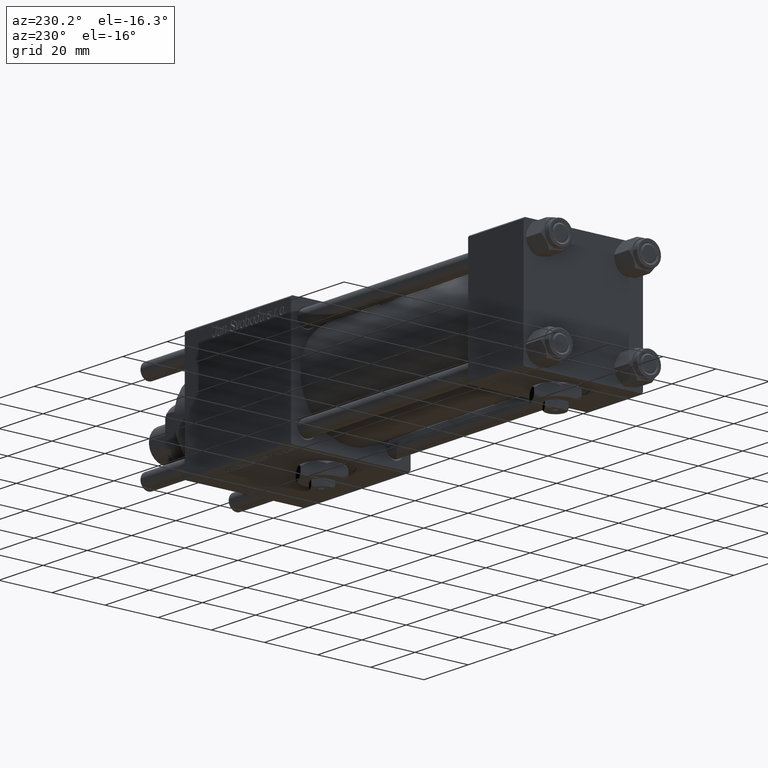
[diagram: clean part render]
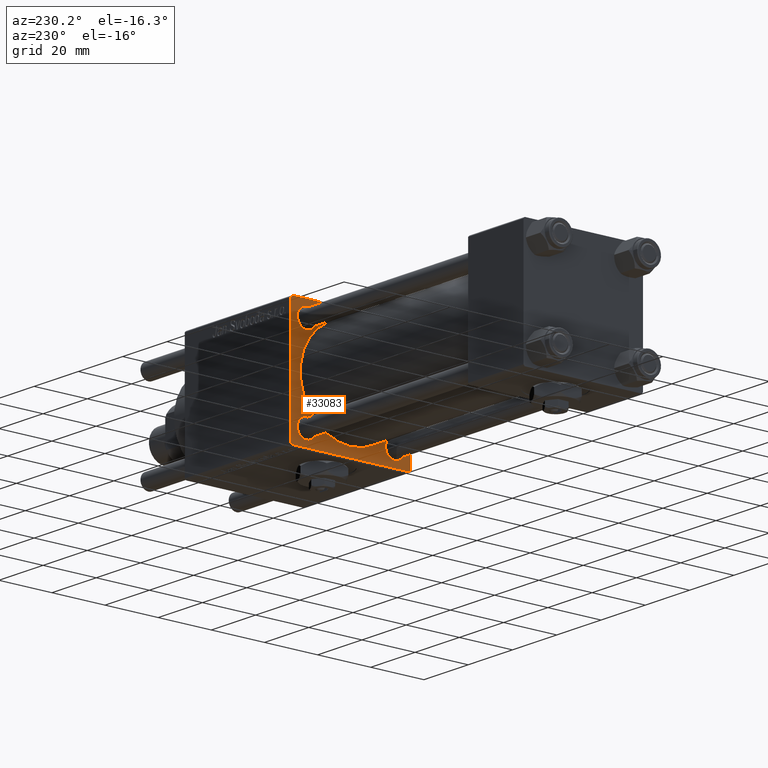
[diagram: same view with one face highlighted and labeled with its STEP entity id]
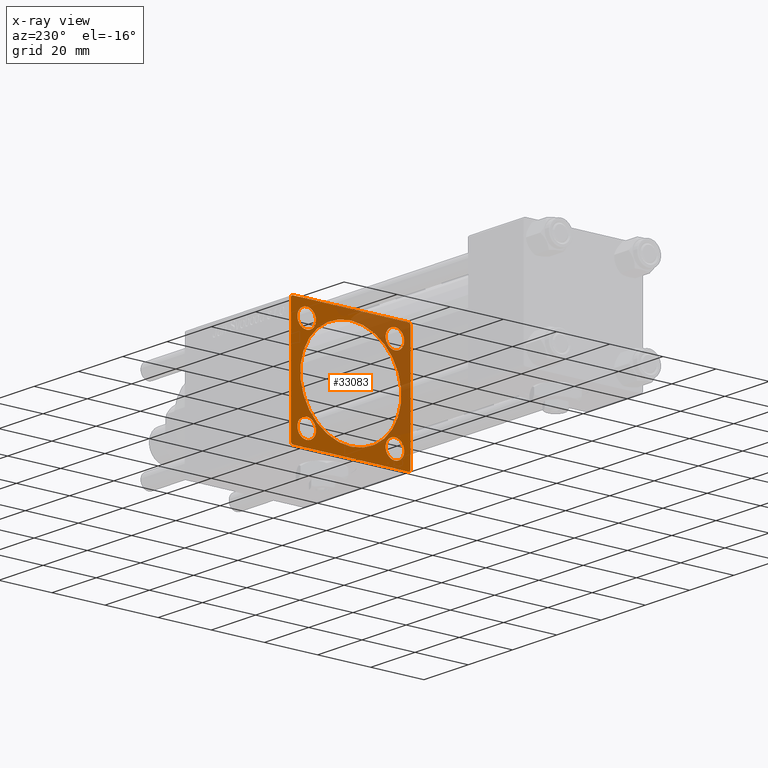
[diagram: x-ray of the same camera — body ghosted, the highlighted face saturated]
A machine part, auxiliary view. The second image highlights one B-rep face of the part: STEP entity #33083.
The next image is the same camera in x-ray: the body ghosted, the highlighted face saturated — about 34% of this face is hidden behind the body in this view.
In plain terms, the highlighted planar face has unit normal (-1, 0, 0).
Its self-contained STEP definition (entity closure, byte-faithful):
#736 = EDGE_CURVE ( 'NONE', #42206, #30085, #11154, .T. ) ;
#1822 = FACE_OUTER_BOUND ( 'NONE', #57294, .T. ) ;
#2079 = VERTEX_POINT ( 'NONE', #49309 ) ;
#2160 = EDGE_LOOP ( 'NONE', ( #48349, #51682 ) ) ;
#2229 = CARTESIAN_POINT ( 'NONE',  ( 105.0000000000000142, 16.59999999999999787, -16.60000000000000497 ) ) ;
#2240 = CARTESIAN_POINT ( 'NONE',  ( 105.0000000000000142, -2.602085213965210642E-15, 19.00000000000000000 ) ) ;
#2717 = CARTESIAN_POINT ( 'NONE',  ( 105.0000000000000142, 21.99999999999998934, -22.49999999999999645 ) ) ;
#3082 = DIRECTION ( 'NONE',  ( 0.000000000000000000, 0.000000000000000000, 1.000000000000000000 ) ) ;
#3524 = DIRECTION ( 'NONE',  ( 0.000000000000000000, -1.000000000000000000, -2.312964634635742957E-16 ) ) ;
#3587 = CARTESIAN_POINT ( 'NONE',  ( 105.0000000000000142, -22.49999999999999645, -21.99999999999997868 ) ) ;
#4515 = EDGE_CURVE ( 'NONE', #47605, #16704, #32586, .T. ) ;
#5038 = DIRECTION ( 'NONE',  ( 0.000000000000000000, 0.000000000000000000, 1.000000000000000000 ) ) ;
#5687 = LINE ( 'NONE', #56040, #31785 ) ;
#5832 = ORIENTED_EDGE ( 'NONE', *, *, #45251, .T. ) ;
#6378 = EDGE_CURVE ( 'NONE', #54887, #50156, #23923, .T. ) ;
#6623 = DIRECTION ( 'NONE',  ( 1.000000000000000000, 0.000000000000000000, 0.000000000000000000 ) ) ;
#6974 = FACE_BOUND ( 'NONE', #14320, .T. ) ;
#7241 = ORIENTED_EDGE ( 'NONE', *, *, #4515, .T. ) ;
#7329 = ORIENTED_EDGE ( 'NONE', *, *, #60033, .T. ) ;
#7377 = ORIENTED_EDGE ( 'NONE', *, *, #21058, .T. ) ;
#7544 = DIRECTION ( 'NONE',  ( 1.000000000000000000, -0.000000000000000000, 0.000000000000000000 ) ) ;
#9103 = EDGE_CURVE ( 'NONE', #2079, #21564, #10468, .T. ) ;
#9326 = ORIENTED_EDGE ( 'NONE', *, *, #9103, .T. ) ;
#9390 = CIRCLE ( 'NONE', #17146, 3.500000000000058620 ) ;
#9600 = DIRECTION ( 'NONE',  ( 1.000000000000000000, -0.000000000000000000, 0.000000000000000000 ) ) ;
#9624 = AXIS2_PLACEMENT_3D ( 'NONE', #2229, #13042, #29846 ) ;
#9709 = CIRCLE ( 'NONE', #33924, 3.500000000000058620 ) ;
#10468 = CIRCLE ( 'NONE', #14310, 3.500000000000058620 ) ;
#10715 = DIRECTION ( 'NONE',  ( 0.000000000000000000, 0.000000000000000000, 1.000000000000000000 ) ) ;
#10817 = CARTESIAN_POINT ( 'NONE',  ( 105.0000000000000142, 22.00000000000000355, 22.50000000000000355 ) ) ;
#11154 = LINE ( 'NONE', #43637, #14061 ) ;
#11560 = VERTEX_POINT ( 'NONE', #50959 ) ;
#11852 = EDGE_CURVE ( 'NONE', #30085, #45032, #40331, .T. ) ;
#11944 = VERTEX_POINT ( 'NONE', #32687 ) ;
#11969 = AXIS2_PLACEMENT_3D ( 'NONE', #38501, #6623, #29073 ) ;
#12044 = CIRCLE ( 'NONE', #45954, 3.499999999999989342 ) ;
#12534 = EDGE_LOOP ( 'NONE', ( #46786, #7241 ) ) ;
#13042 = DIRECTION ( 'NONE',  ( 1.000000000000000000, -0.000000000000000000, 0.000000000000000000 ) ) ;
#13900 = VERTEX_POINT ( 'NONE', #20386 ) ;
#14061 = VECTOR ( 'NONE', #47279, 999.9999999999998863 ) ;
#14075 = CARTESIAN_POINT ( 'NONE',  ( 105.0000000000000142, -22.49999999999999645, 22.49999999999999289 ) ) ;
#14148 = DIRECTION ( 'NONE',  ( 1.000000000000000000, 0.000000000000000000, 0.000000000000000000 ) ) ;
#14310 = AXIS2_PLACEMENT_3D ( 'NONE', #43562, #25030, #29580 ) ;
#14320 = EDGE_LOOP ( 'NONE', ( #7377, #9326 ) ) ;
#15254 = CARTESIAN_POINT ( 'NONE',  ( 105.0000000000000142, -16.59999999999999076, 16.60000000000000853 ) ) ;
#16146 = AXIS2_PLACEMENT_3D ( 'NONE', #55699, #9600, #5038 ) ;
#16704 = VERTEX_POINT ( 'NONE', #37456 ) ;
#17146 = AXIS2_PLACEMENT_3D ( 'NONE', #48809, #7544, #21796 ) ;
#17316 = ORIENTED_EDGE ( 'NONE', *, *, #48860, .F. ) ;
#17484 = LINE ( 'NONE', #53594, #28795 ) ;
#17716 = AXIS2_PLACEMENT_3D ( 'NONE', #26156, #53449, #3082 ) ;
#17758 = CIRCLE ( 'NONE', #11969, 19.00000000000000000 ) ;
#17850 = ORIENTED_EDGE ( 'NONE', *, *, #58696, .T. ) ;
#19035 = VECTOR ( 'NONE', #51082, 1000.000000000000000 ) ;
#19160 = EDGE_LOOP ( 'NONE', ( #5832, #38610 ) ) ;
#19272 = EDGE_CURVE ( 'NONE', #13900, #11944, #37746, .T. ) ;
#19498 = ORIENTED_EDGE ( 'NONE', *, *, #50569, .T. ) ;
#20157 = CARTESIAN_POINT ( 'NONE',  ( 105.0000000000000142, -16.59999999999999076, -16.60000000000000853 ) ) ;
#20227 = AXIS2_PLACEMENT_3D ( 'NONE', #15254, #33760, #10715 ) ;
#20386 = CARTESIAN_POINT ( 'NONE',  ( 105.0000000000000142, 16.59999999999999787, -20.10000000000006182 ) ) ;
#21058 = EDGE_CURVE ( 'NONE', #21564, #2079, #9709, .T. ) ;
#21221 = VERTEX_POINT ( 'NONE', #59826 ) ;
#21564 = VERTEX_POINT ( 'NONE', #33697 ) ;
#21796 = DIRECTION ( 'NONE',  ( 0.000000000000000000, 0.000000000000000000, 1.000000000000000000 ) ) ;
#22038 = DIRECTION ( 'NONE',  ( 0.000000000000000000, -0.7071067811865425767, 0.7071067811865525687 ) ) ;
#22330 = CARTESIAN_POINT ( 'NONE',  ( 105.0000000000000142, -22.25000000000015277, -22.24999999999984013 ) ) ;
#23923 = CIRCLE ( 'NONE', #52988, 19.00000000000000000 ) ;
#25030 = DIRECTION ( 'NONE',  ( 1.000000000000000000, -0.000000000000000000, 0.000000000000000000 ) ) ;
#26024 = CARTESIAN_POINT ( 'NONE',  ( 105.0000000000000142, 16.59999999999999787, 13.10000000000001386 ) ) ;
#26046 = ORIENTED_EDGE ( 'NONE', *, *, #736, .T. ) ;
#26156 = CARTESIAN_POINT ( 'NONE',  ( 105.0000000000000142, 16.59999999999999787, 16.60000000000000497 ) ) ;
#26514 = DIRECTION ( 'NONE',  ( 0.000000000000000000, 0.000000000000000000, 1.000000000000000000 ) ) ;
#27438 = LINE ( 'NONE', #14075, #19035 ) ;
#27809 = CARTESIAN_POINT ( 'NONE',  ( 105.0000000000000142, -2.602085213965210642E-15, 0.000000000000000000 ) ) ;
#28435 = DIRECTION ( 'NONE',  ( 0.000000000000000000, 0.000000000000000000, -1.000000000000000000 ) ) ;
#28795 = VECTOR ( 'NONE', #3524, 1000.000000000000000 ) ;
#28981 = EDGE_CURVE ( 'NONE', #16704, #47605, #36138, .T. ) ;
#29073 = DIRECTION ( 'NONE',  ( 0.000000000000000000, 0.000000000000000000, -1.000000000000000000 ) ) ;
#29135 = PLANE ( 'NONE',  #39051 ) ;
#29243 = ORIENTED_EDGE ( 'NONE', *, *, #37655, .T. ) ;
#29433 = FACE_BOUND ( 'NONE', #12534, .T. ) ;
#29580 = DIRECTION ( 'NONE',  ( 0.000000000000000000, 0.000000000000000000, 1.000000000000000000 ) ) ;
#29846 = DIRECTION ( 'NONE',  ( 0.000000000000000000, 0.000000000000000000, 1.000000000000000000 ) ) ;
#30042 = DIRECTION ( 'NONE',  ( -0.000000000000000000, 0.000000000000000000, 1.000000000000000000 ) ) ;
#30085 = VERTEX_POINT ( 'NONE', #2717 ) ;
#30675 = VERTEX_POINT ( 'NONE', #37661 ) ;
#30881 = CIRCLE ( 'NONE', #20227, 3.499999999999989342 ) ;
#31036 = EDGE_CURVE ( 'NONE', #50156, #54887, #17758, .T. ) ;
#31785 = VECTOR ( 'NONE', #28435, 1000.000000000000000 ) ;
#32586 = CIRCLE ( 'NONE', #16146, 3.499999999999989342 ) ;
#32687 = CARTESIAN_POINT ( 'NONE',  ( 105.0000000000000142, 16.59999999999999787, -13.09999999999994458 ) ) ;
#33083 = ADVANCED_FACE ( 'NONE', ( #42800, #29433, #44003, #6974, #48247, #1822 ), #29135, .T. ) ;
#33460 = CARTESIAN_POINT ( 'NONE',  ( 105.0000000000000142, -22.49999999999999645, 21.99999999999999289 ) ) ;
#33635 = VECTOR ( 'NONE', #22038, 999.9999999999998863 ) ;
#33697 = CARTESIAN_POINT ( 'NONE',  ( 105.0000000000000142, -16.59999999999999076, -13.09999999999994813 ) ) ;
#33760 = DIRECTION ( 'NONE',  ( 1.000000000000000000, -0.000000000000000000, 0.000000000000000000 ) ) ;
#33924 = AXIS2_PLACEMENT_3D ( 'NONE', #20157, #56548, #38693 ) ;
#34219 = CARTESIAN_POINT ( 'NONE',  ( 105.0000000000000142, -21.99999999999998224, -22.50000000000000000 ) ) ;
#34932 = VERTEX_POINT ( 'NONE', #59472 ) ;
#35623 = DIRECTION ( 'NONE',  ( 1.000000000000000000, -0.000000000000000000, 0.000000000000000000 ) ) ;
#36138 = CIRCLE ( 'NONE', #17716, 3.499999999999989342 ) ;
#37456 = CARTESIAN_POINT ( 'NONE',  ( 105.0000000000000142, 16.59999999999999787, 20.09999999999999432 ) ) ;
#37655 = EDGE_CURVE ( 'NONE', #34932, #21221, #12044, .T. ) ;
#37661 = CARTESIAN_POINT ( 'NONE',  ( 105.0000000000000142, 22.50000000000000355, 22.00000000000000355 ) ) ;
#37746 = CIRCLE ( 'NONE', #9624, 3.500000000000058620 ) ;
#38252 = DIRECTION ( 'NONE',  ( -1.000000000000000000, 0.000000000000000000, -0.000000000000000000 ) ) ;
#38501 = CARTESIAN_POINT ( 'NONE',  ( 105.0000000000000142, -2.602085213965210642E-15, 0.000000000000000000 ) ) ;
#38610 = ORIENTED_EDGE ( 'NONE', *, *, #19272, .T. ) ;
#38693 = DIRECTION ( 'NONE',  ( 0.000000000000000000, 0.000000000000000000, 1.000000000000000000 ) ) ;
#39051 = AXIS2_PLACEMENT_3D ( 'NONE', #39464, #38252, #30042 ) ;
#39464 = CARTESIAN_POINT ( 'NONE',  ( 105.0000000000000142, 0.000000000000000000, 0.000000000000000000 ) ) ;
#40331 = LINE ( 'NONE', #58806, #44539 ) ;
#40484 = VECTOR ( 'NONE', #51720, 1000.000000000000000 ) ;
#41417 = VECTOR ( 'NONE', #41584, 1000.000000000000114 ) ;
#41584 = DIRECTION ( 'NONE',  ( 0.000000000000000000, 0.7071067811865474617, -0.7071067811865474617 ) ) ;
#42030 = VERTEX_POINT ( 'NONE', #33460 ) ;
#42206 = VERTEX_POINT ( 'NONE', #50711 ) ;
#42707 = DIRECTION ( 'NONE',  ( 0.000000000000000000, -1.000000000000000000, -7.709882115452476934E-17 ) ) ;
#42800 = FACE_BOUND ( 'NONE', #58936, .T. ) ;
#43562 = CARTESIAN_POINT ( 'NONE',  ( 105.0000000000000142, -16.59999999999999076, -16.60000000000000853 ) ) ;
#43637 = CARTESIAN_POINT ( 'NONE',  ( 105.0000000000000142, 22.25000000000029843, -22.24999999999968026 ) ) ;
#44003 = FACE_BOUND ( 'NONE', #19160, .T. ) ;
#44539 = VECTOR ( 'NONE', #42707, 1000.000000000000000 ) ;
#45032 = VERTEX_POINT ( 'NONE', #34219 ) ;
#45251 = EDGE_CURVE ( 'NONE', #11944, #13900, #9390, .T. ) ;
#45471 = CARTESIAN_POINT ( 'NONE',  ( 105.0000000000000142, -2.752562955852396712E-16, -19.00000000000000000 ) ) ;
#45954 = AXIS2_PLACEMENT_3D ( 'NONE', #59560, #35623, #26514 ) ;
#46326 = DIRECTION ( 'NONE',  ( 0.000000000000000000, 0.000000000000000000, -1.000000000000000000 ) ) ;
#46337 = EDGE_CURVE ( 'NONE', #45032, #54758, #59037, .T. ) ;
#46532 = EDGE_CURVE ( 'NONE', #42030, #11560, #48087, .T. ) ;
#46786 = ORIENTED_EDGE ( 'NONE', *, *, #28981, .T. ) ;
#47279 = DIRECTION ( 'NONE',  ( -0.000000000000000000, -0.7071067811865376918, -0.7071067811865574537 ) ) ;
#47605 = VERTEX_POINT ( 'NONE', #26024 ) ;
#47976 = ORIENTED_EDGE ( 'NONE', *, *, #51837, .F. ) ;
#48087 = LINE ( 'NONE', #56264, #40484 ) ;
#48247 = FACE_BOUND ( 'NONE', #2160, .T. ) ;
#48349 = ORIENTED_EDGE ( 'NONE', *, *, #31036, .T. ) ;
#48809 = CARTESIAN_POINT ( 'NONE',  ( 105.0000000000000142, 16.59999999999999787, -16.60000000000000497 ) ) ;
#48860 = EDGE_CURVE ( 'NONE', #42030, #54758, #27438, .T. ) ;
#49309 = CARTESIAN_POINT ( 'NONE',  ( 105.0000000000000142, -16.59999999999999076, -20.10000000000006537 ) ) ;
#50156 = VERTEX_POINT ( 'NONE', #2240 ) ;
#50569 = EDGE_CURVE ( 'NONE', #53726, #30675, #50954, .T. ) ;
#50664 = CARTESIAN_POINT ( 'NONE',  ( 105.0000000000000142, 22.25000000000000355, 22.25000000000000355 ) ) ;
#50711 = CARTESIAN_POINT ( 'NONE',  ( 105.0000000000000142, 22.50000000000000355, -21.99999999999995381 ) ) ;
#50954 = LINE ( 'NONE', #50664, #41417 ) ;
#50959 = CARTESIAN_POINT ( 'NONE',  ( 105.0000000000000142, -21.99999999999999645, 22.49999999999999289 ) ) ;
#51082 = DIRECTION ( 'NONE',  ( 0.000000000000000000, 0.000000000000000000, -1.000000000000000000 ) ) ;
#51682 = ORIENTED_EDGE ( 'NONE', *, *, #6378, .T. ) ;
#51720 = DIRECTION ( 'NONE',  ( -0.000000000000000000, 0.7071067811865378028, 0.7071067811865573427 ) ) ;
#51837 = EDGE_CURVE ( 'NONE', #53726, #11560, #17484, .T. ) ;
#52837 = ORIENTED_EDGE ( 'NONE', *, *, #11852, .T. ) ;
#52988 = AXIS2_PLACEMENT_3D ( 'NONE', #27809, #14148, #46326 ) ;
#53449 = DIRECTION ( 'NONE',  ( 1.000000000000000000, -0.000000000000000000, 0.000000000000000000 ) ) ;
#53594 = CARTESIAN_POINT ( 'NONE',  ( 105.0000000000000142, 22.50000000000000355, 22.50000000000000355 ) ) ;
#53726 = VERTEX_POINT ( 'NONE', #10817 ) ;
#54758 = VERTEX_POINT ( 'NONE', #3587 ) ;
#54887 = VERTEX_POINT ( 'NONE', #45471 ) ;
#55699 = CARTESIAN_POINT ( 'NONE',  ( 105.0000000000000142, 16.59999999999999787, 16.60000000000000497 ) ) ;
#55814 = ORIENTED_EDGE ( 'NONE', *, *, #46532, .T. ) ;
#56040 = CARTESIAN_POINT ( 'NONE',  ( 105.0000000000000142, 22.50000000000000355, 22.50000000000000355 ) ) ;
#56264 = CARTESIAN_POINT ( 'NONE',  ( 105.0000000000000142, -22.25000000000030909, 22.24999999999969447 ) ) ;
#56548 = DIRECTION ( 'NONE',  ( 1.000000000000000000, -0.000000000000000000, 0.000000000000000000 ) ) ;
#57294 = EDGE_LOOP ( 'NONE', ( #52837, #57454, #17316, #55814, #47976, #19498, #17850, #26046 ) ) ;
#57454 = ORIENTED_EDGE ( 'NONE', *, *, #46337, .T. ) ;
#58696 = EDGE_CURVE ( 'NONE', #30675, #42206, #5687, .T. ) ;
#58806 = CARTESIAN_POINT ( 'NONE',  ( 105.0000000000000142, 22.50000000000000355, -22.49999999999999645 ) ) ;
#58936 = EDGE_LOOP ( 'NONE', ( #7329, #29243 ) ) ;
#59037 = LINE ( 'NONE', #22330, #33635 ) ;
#59472 = CARTESIAN_POINT ( 'NONE',  ( 105.0000000000000142, -16.59999999999999076, 13.10000000000001741 ) ) ;
#59560 = CARTESIAN_POINT ( 'NONE',  ( 105.0000000000000142, -16.59999999999999076, 16.60000000000000853 ) ) ;
#59826 = CARTESIAN_POINT ( 'NONE',  ( 105.0000000000000142, -16.59999999999999076, 20.09999999999999787 ) ) ;
#60033 = EDGE_CURVE ( 'NONE', #21221, #34932, #30881, .T. ) ;